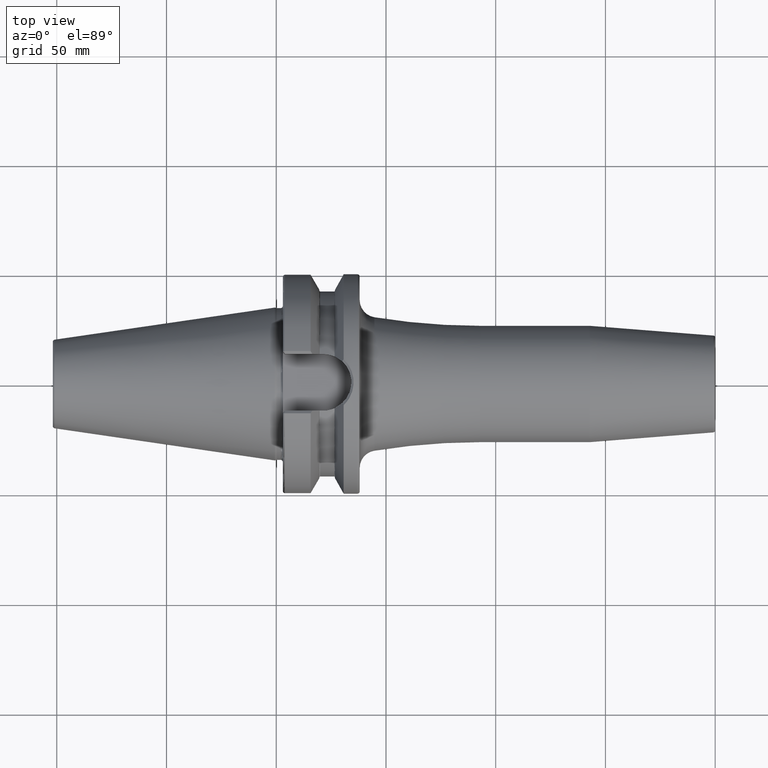
[diagram: clean part render]
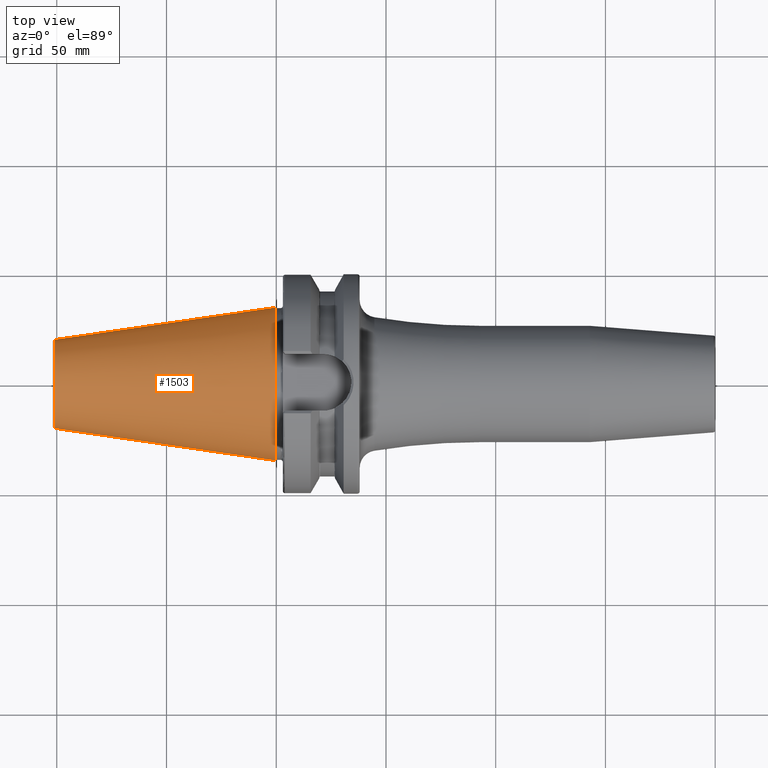
[diagram: same view with one face highlighted and labeled with its STEP entity id]
A machine part, top view. The second image highlights one B-rep face of the part: STEP entity #1503.
In plain terms, the highlighted conical surface has half-angle 8.298 deg.
Its self-contained STEP definition (entity closure, byte-faithful):
#37=CARTESIAN_POINT('',(-1.009443186692E2,0.E0,0.E0));
#38=DIRECTION('',(1.E0,0.E0,0.E0));
#39=DIRECTION('',(0.E0,1.E0,0.E0));
#40=AXIS2_PLACEMENT_3D('',#37,#38,#39);
#42=CARTESIAN_POINT('',(-6.191906162850E-1,0.E0,0.E0));
#43=DIRECTION('',(1.E0,0.E0,0.E0));
#44=DIRECTION('',(0.E0,1.E0,0.E0));
#45=AXIS2_PLACEMENT_3D('',#42,#43,#44);
#47=DIRECTION('',(-9.895312636440E-1,-1.443186691705E-1,0.E0));
#48=VECTOR('',#47,1.013865167670E2);
#49=CARTESIAN_POINT('',(-6.191906162849E-1,3.483469384295E1,0.E0));
#50=LINE('',#49,#48);
#51=DIRECTION('',(-9.895312636440E-1,1.443186691705E-1,0.E0));
#52=VECTOR('',#51,1.013865167670E2);
#53=CARTESIAN_POINT('',(-6.191906162849E-1,-3.483469384295E1,0.E0));
#54=LINE('',#53,#52);
#1188=CARTESIAN_POINT('',(-1.009443186692E2,2.020272667130E1,0.E0));
#1190=VERTEX_POINT('',#1188);
#1192=CARTESIAN_POINT('',(-1.009443186692E2,-2.020272667130E1,0.E0));
#1194=VERTEX_POINT('',#1192);
#1407=CARTESIAN_POINT('',(-6.191906162849E-1,3.483469384295E1,0.E0));
#1408=VERTEX_POINT('',#1407);
#1409=CARTESIAN_POINT('',(-6.191906162849E-1,-3.483469384295E1,0.E0));
#1410=VERTEX_POINT('',#1409);
#1489=CARTESIAN_POINT('',(-5.078175464273E1,0.E0,0.E0));
#1490=DIRECTION('',(1.E0,0.E0,0.E0));
#1491=DIRECTION('',(0.E0,-1.E0,0.E0));
#1492=AXIS2_PLACEMENT_3D('',#1489,#1490,#1491);
#1493=CONICAL_SURFACE('',#1492,2.751871025712E1,8.297826828206E0);
#1495=ORIENTED_EDGE('',*,*,#1494,.F.);
#1497=ORIENTED_EDGE('',*,*,#1496,.T.);
#1499=ORIENTED_EDGE('',*,*,#1498,.T.);
#1500=ORIENTED_EDGE('',*,*,#1482,.F.);
#1501=EDGE_LOOP('',(#1495,#1497,#1499,#1500));
#1502=FACE_OUTER_BOUND('',#1501,.F.);
#1503=ADVANCED_FACE('',(#1502),#1493,.T.);
#41=CIRCLE('',#40,2.020272667130E1);
#46=CIRCLE('',#45,3.483469384295E1);
#1482=EDGE_CURVE('',#1190,#1194,#41,.T.);
#1494=EDGE_CURVE('',#1408,#1190,#50,.T.);
#1496=EDGE_CURVE('',#1408,#1410,#46,.T.);
#1498=EDGE_CURVE('',#1410,#1194,#54,.T.);